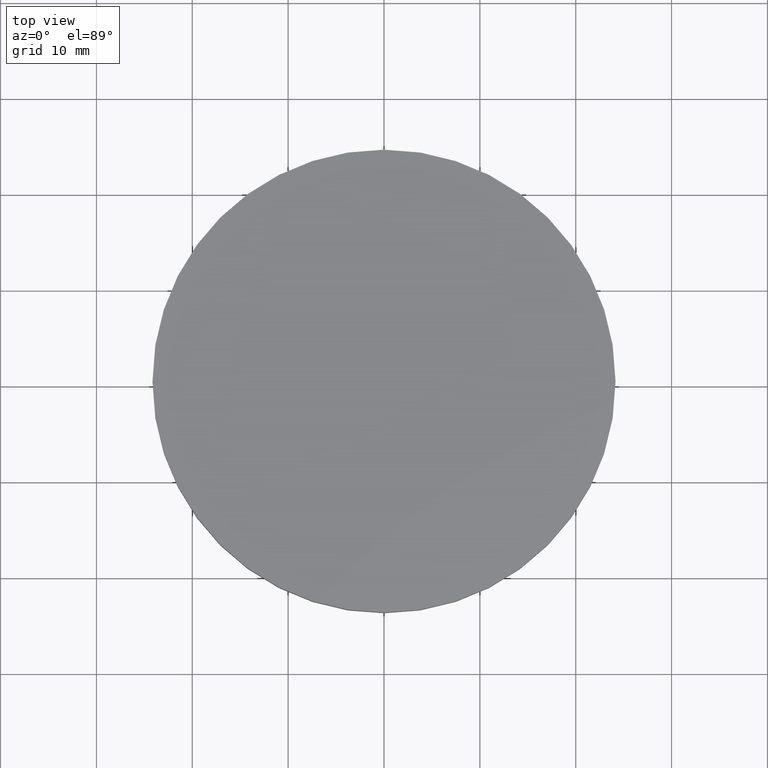
[diagram: clean part render]
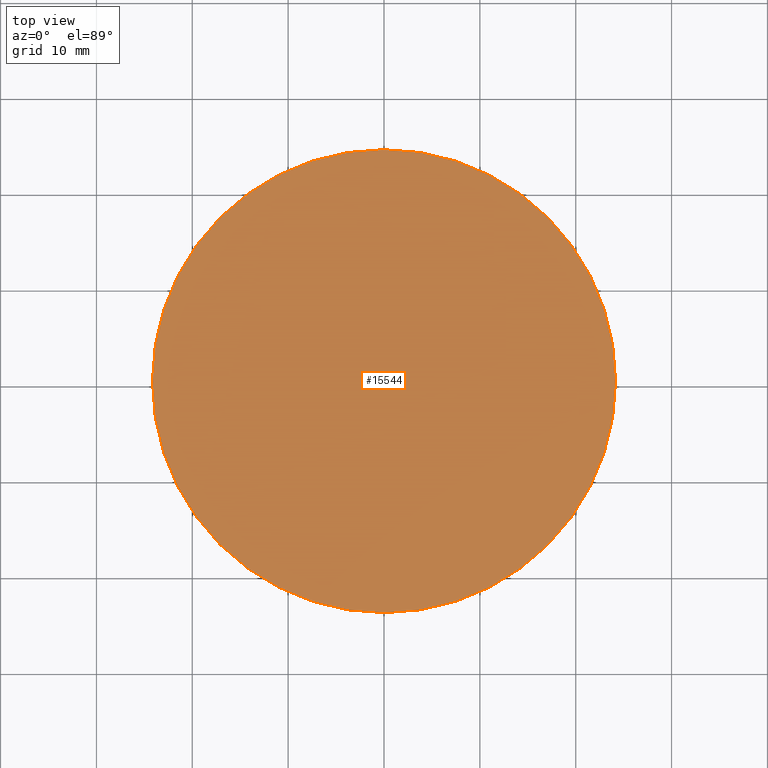
[diagram: same view with one face highlighted and labeled with its STEP entity id]
A machine part, top view. The second image highlights one B-rep face of the part: STEP entity #15544.
In plain terms, the highlighted planar face has unit normal (0, 0, 1).
Its self-contained STEP definition (entity closure, byte-faithful):
#2099 = CARTESIAN_POINT ( 'NONE',  ( 24.14999999999999900, 0.0000000000000000000, 4.000000000000000000 ) ) ;
#2666 = AXIS2_PLACEMENT_3D ( 'NONE', #4386, #20006, #21796 ) ;
#4386 = CARTESIAN_POINT ( 'NONE',  ( 0.0000000000000000000, 0.0000000000000000000, 4.000000000000000000 ) ) ;
#4842 = EDGE_LOOP ( 'NONE', ( #19372 ) ) ;
#6230 = CIRCLE ( 'NONE', #2666, 24.14999999999999900 ) ;
#7068 = FACE_OUTER_BOUND ( 'NONE', #4842, .T. ) ;
#8902 = CARTESIAN_POINT ( 'NONE',  ( 0.0000000000000000000, 0.0000000000000000000, 4.000000000000000000 ) ) ;
#10487 = DIRECTION ( 'NONE',  ( 1.000000000000000000, 0.0000000000000000000, -0.0000000000000000000 ) ) ;
#10564 = AXIS2_PLACEMENT_3D ( 'NONE', #8902, #19179, #10487 ) ;
#12543 = VERTEX_POINT ( 'NONE', #2099 ) ;
#15544 = ADVANCED_FACE ( 'NONE', ( #7068 ), #19256, .T. ) ;
#15832 = EDGE_CURVE ( 'NONE', #12543, #12543, #6230, .T. ) ;
#19179 = DIRECTION ( 'NONE',  ( 0.0000000000000000000, 0.0000000000000000000, 1.000000000000000000 ) ) ;
#19256 = PLANE ( 'NONE',  #10564 ) ;
#19372 = ORIENTED_EDGE ( 'NONE', *, *, #15832, .T. ) ;
#20006 = DIRECTION ( 'NONE',  ( 0.0000000000000000000, 0.0000000000000000000, 1.000000000000000000 ) ) ;
#21796 = DIRECTION ( 'NONE',  ( 1.000000000000000000, 0.0000000000000000000, 0.0000000000000000000 ) ) ;